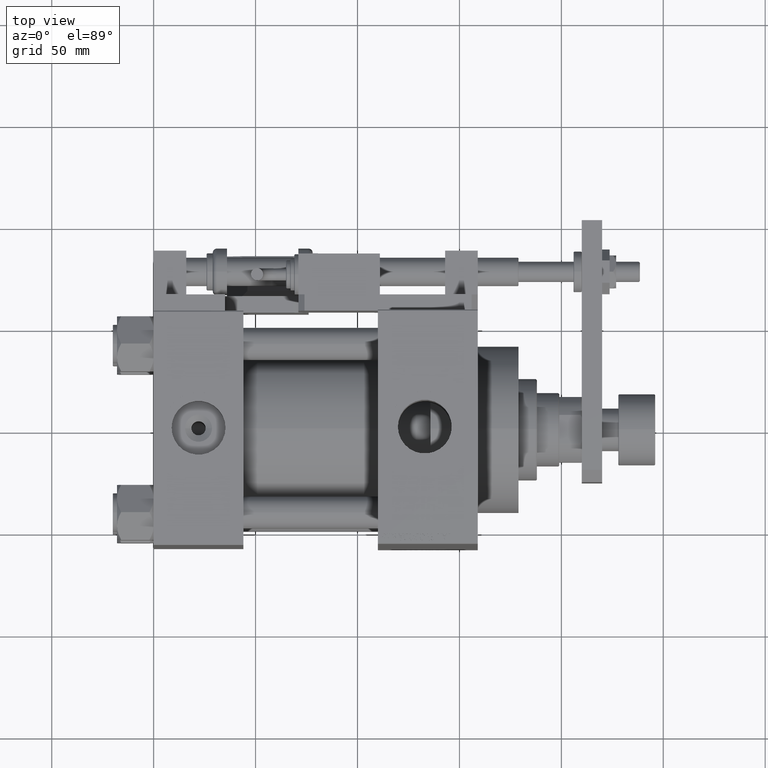
[diagram: clean part render]
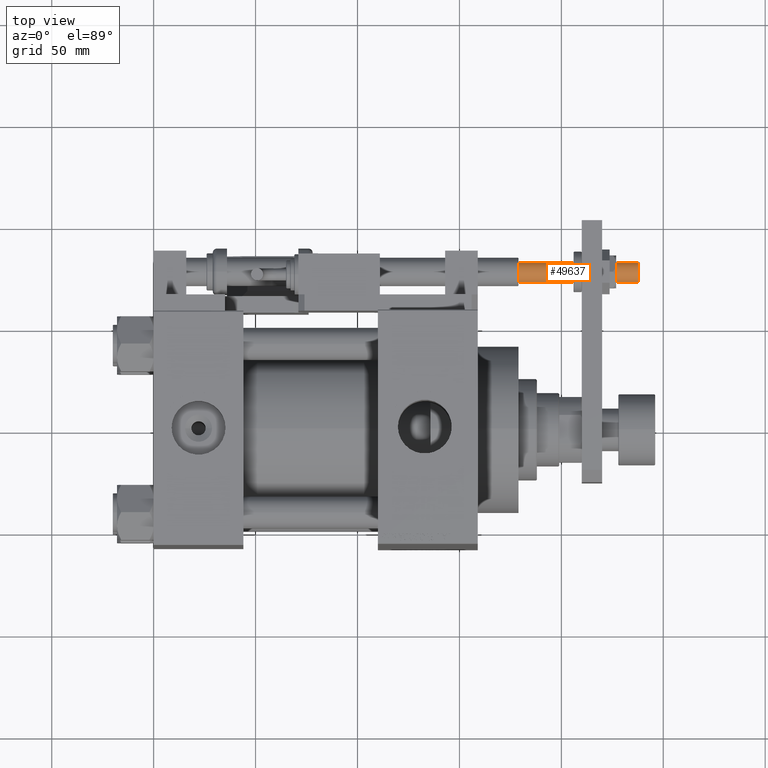
[diagram: same view with one face highlighted and labeled with its STEP entity id]
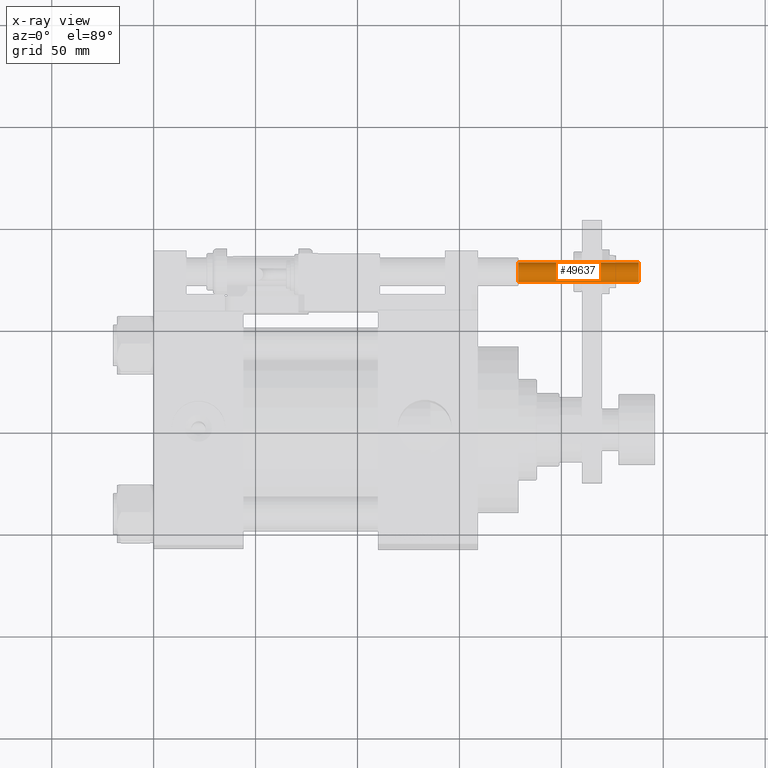
[diagram: x-ray of the same camera — body ghosted, the highlighted face saturated]
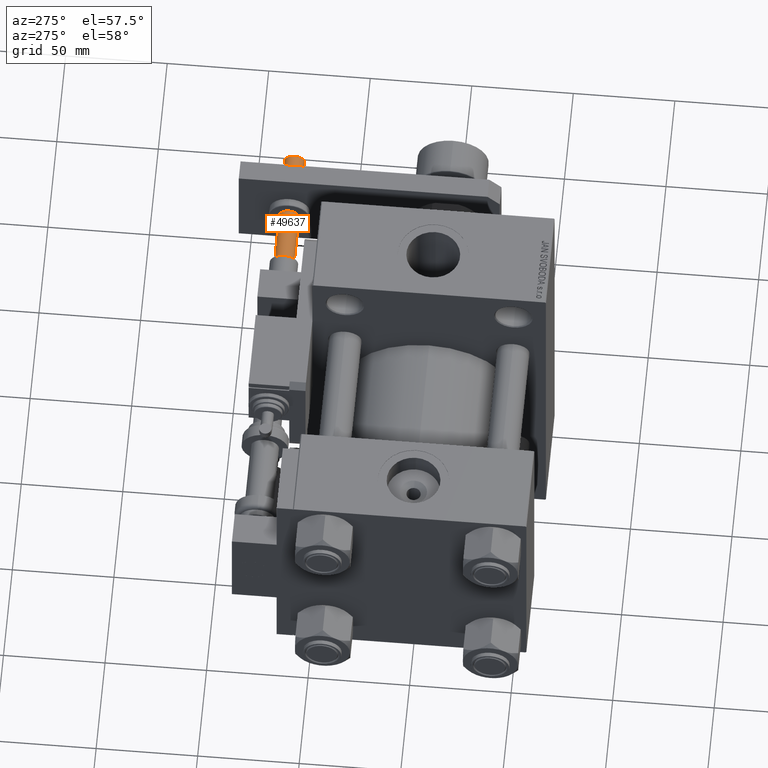
[diagram: same view with one face highlighted and labeled with its STEP entity id]
A machine part, top view. The second image highlights one B-rep face of the part: STEP entity #49637.
The next image is the same camera in x-ray: the body ghosted, the highlighted face saturated — about 0% of this face is hidden behind the body in this view.
A second angle (auxiliary view) of the same face is appended — the face is thin or edge-on in the first view.
In plain terms, the highlighted cylindrical surface (edge-blend (fillet) strip) has radius 5 mm, axis along (-1, 0, 0).
Its self-contained STEP definition (entity closure, byte-faithful):
#582 = EDGE_CURVE ( 'NONE', #26928, #48220, #45129, .T. ) ;
#915 = CARTESIAN_POINT ( 'NONE',  ( -5.000000000000000000, 6.123233995736766282E-16, -59.50000000000000000 ) ) ;
#925 = CARTESIAN_POINT ( 'NONE',  ( -5.000000000000000000, 6.123233995736766282E-16, -59.00000000000001421 ) ) ;
#3249 = AXIS2_PLACEMENT_3D ( 'NONE', #19302, #43795, #47613 ) ;
#4794 = CARTESIAN_POINT ( 'NONE',  ( -5.000000000000000000, 6.123233995736766282E-16, 0.000000000000000000 ) ) ;
#4831 = ORIENTED_EDGE ( 'NONE', *, *, #582, .T. ) ;
#6573 = EDGE_CURVE ( 'NONE', #50109, #26928, #20307, .T. ) ;
#6696 = ORIENTED_EDGE ( 'NONE', *, *, #36276, .F. ) ;
#7416 = DIRECTION ( 'NONE',  ( 1.000000000000000000, 0.000000000000000000, 0.000000000000000000 ) ) ;
#9334 = CARTESIAN_POINT ( 'NONE',  ( 0.000000000000000000, 0.000000000000000000, 0.000000000000000000 ) ) ;
#16214 = ORIENTED_EDGE ( 'NONE', *, *, #6573, .T. ) ;
#16675 = FACE_OUTER_BOUND ( 'NONE', #49158, .T. ) ;
#19302 = CARTESIAN_POINT ( 'NONE',  ( 0.000000000000000000, 0.000000000000000000, -59.00000000000001421 ) ) ;
#20307 = LINE ( 'NONE', #31456, #47018 ) ;
#21366 = LINE ( 'NONE', #915, #50533 ) ;
#26928 = VERTEX_POINT ( 'NONE', #53264 ) ;
#29245 = DIRECTION ( 'NONE',  ( -1.000000000000000000, 0.000000000000000000, 0.000000000000000000 ) ) ;
#29997 = ORIENTED_EDGE ( 'NONE', *, *, #50361, .T. ) ;
#31456 = CARTESIAN_POINT ( 'NONE',  ( 5.000000000000000000, 0.000000000000000000, -59.50000000000000000 ) ) ;
#31995 = DIRECTION ( 'NONE',  ( -0.000000000000000000, -0.000000000000000000, 1.000000000000000000 ) ) ;
#32195 = DIRECTION ( 'NONE',  ( -0.000000000000000000, -0.000000000000000000, 1.000000000000000000 ) ) ;
#32827 = VERTEX_POINT ( 'NONE', #925 ) ;
#33635 = AXIS2_PLACEMENT_3D ( 'NONE', #49887, #32195, #7416 ) ;
#36276 = EDGE_CURVE ( 'NONE', #32827, #48220, #21366, .T. ) ;
#37664 = DIRECTION ( 'NONE',  ( 0.000000000000000000, 0.000000000000000000, -1.000000000000000000 ) ) ;
#41172 = CYLINDRICAL_SURFACE ( 'NONE', #33635, 5.000000000000000000 ) ;
#43795 = DIRECTION ( 'NONE',  ( 0.000000000000000000, 0.000000000000000000, 1.000000000000000000 ) ) ;
#45129 = CIRCLE ( 'NONE', #52074, 5.000000000000000000 ) ;
#46920 = DIRECTION ( 'NONE',  ( -0.000000000000000000, -0.000000000000000000, 1.000000000000000000 ) ) ;
#47018 = VECTOR ( 'NONE', #31995, 1000.000000000000000 ) ;
#47613 = DIRECTION ( 'NONE',  ( -1.000000000000000000, 0.000000000000000000, 0.000000000000000000 ) ) ;
#48220 = VERTEX_POINT ( 'NONE', #4794 ) ;
#48479 = CIRCLE ( 'NONE', #3249, 5.000000000000000000 ) ;
#49158 = EDGE_LOOP ( 'NONE', ( #6696, #29997, #16214, #4831 ) ) ;
#49637 = ADVANCED_FACE ( 'NONE', ( #16675 ), #41172, .T. ) ;
#49887 = CARTESIAN_POINT ( 'NONE',  ( 0.000000000000000000, 0.000000000000000000, -59.50000000000000000 ) ) ;
#50109 = VERTEX_POINT ( 'NONE', #52090 ) ;
#50361 = EDGE_CURVE ( 'NONE', #32827, #50109, #48479, .T. ) ;
#50533 = VECTOR ( 'NONE', #46920, 1000.000000000000000 ) ;
#52074 = AXIS2_PLACEMENT_3D ( 'NONE', #9334, #37664, #29245 ) ;
#52090 = CARTESIAN_POINT ( 'NONE',  ( 5.000000000000000000, 0.000000000000000000, -59.00000000000001421 ) ) ;
#53264 = CARTESIAN_POINT ( 'NONE',  ( 5.000000000000000000, 0.000000000000000000, 0.000000000000000000 ) ) ;